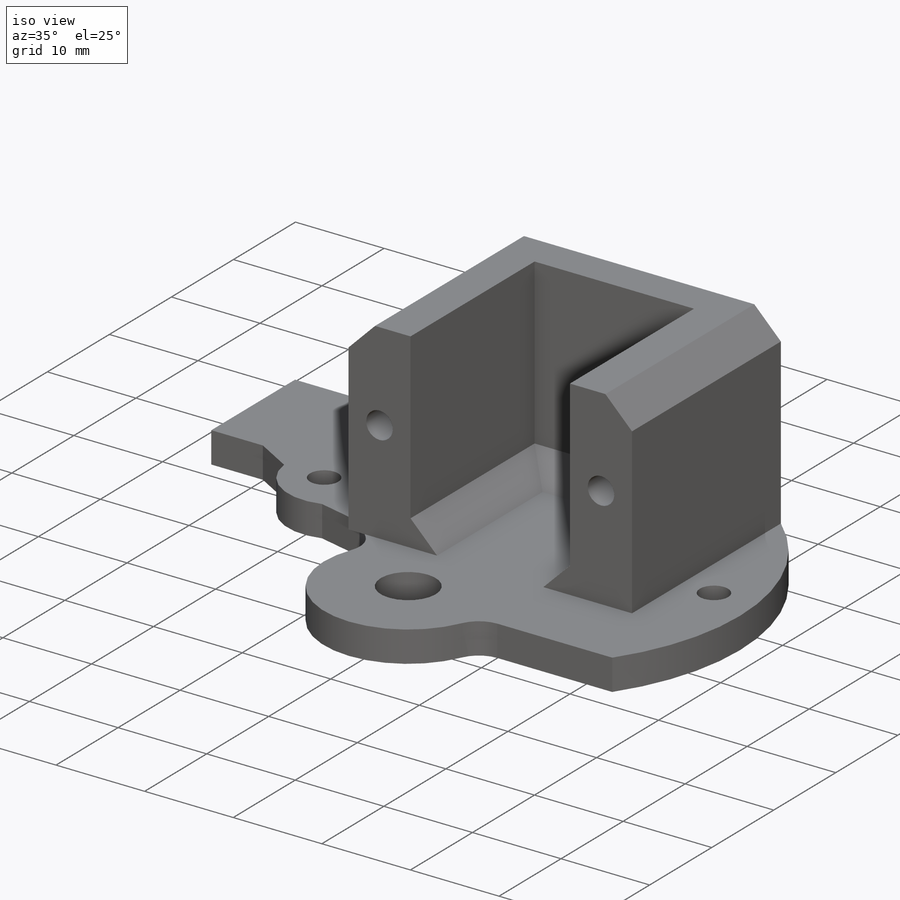
[diagram: iso view]
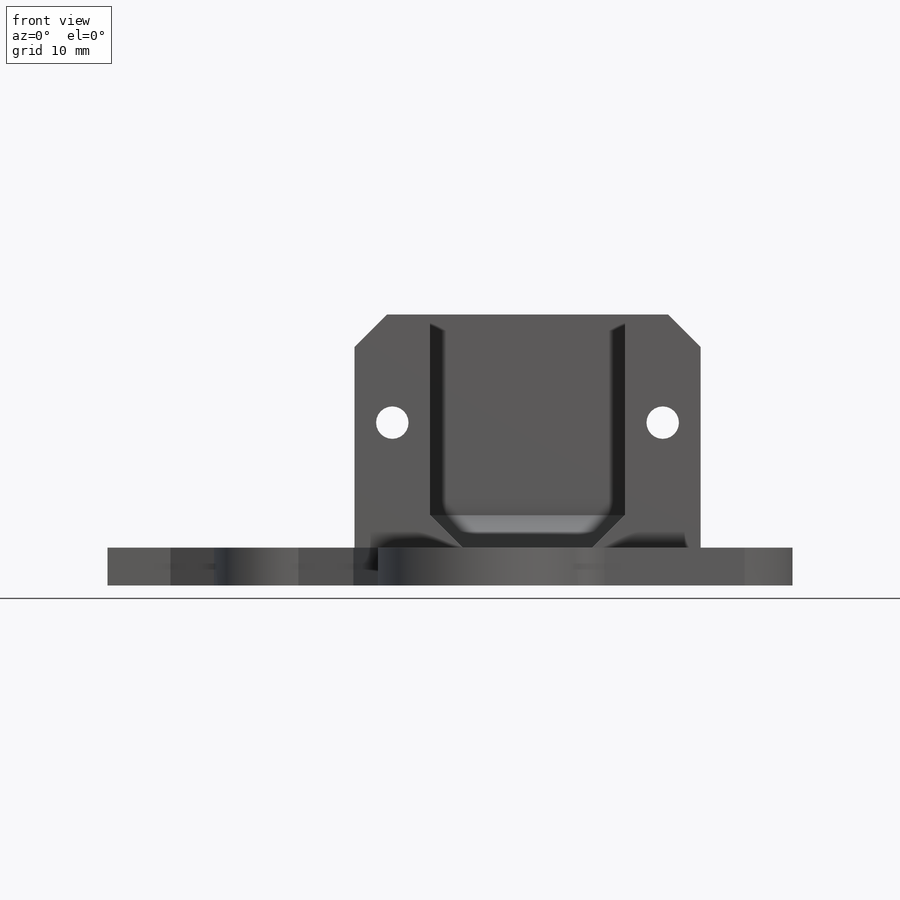
[diagram: front view]
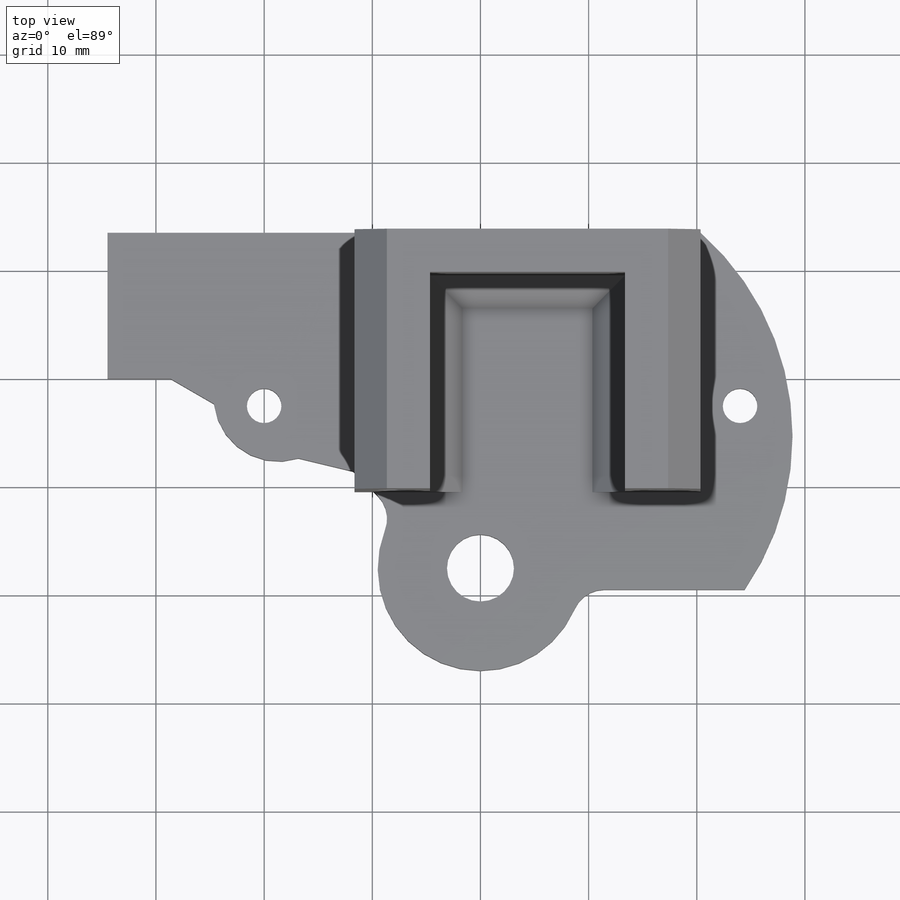
[diagram: top view]
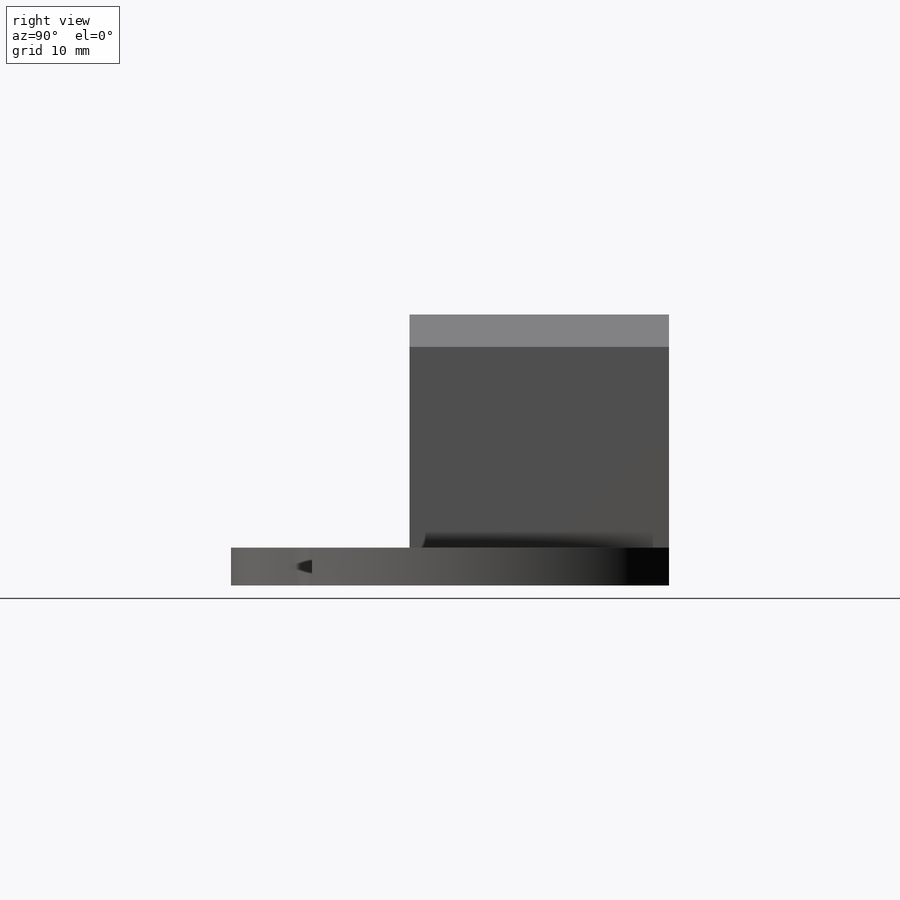
[diagram: right view]
SOLIDWORKS PART (.sldprt)
format: sldprt  version: not decoded by parser v0  size: 936,960 bytes
history: native  units: mm
features: sketch x15, cut_extrude x9, extrude x6, plane x3, delete_body x3, material x1, fillet x1, chamfer x1, move_body x1 (+10 scaffold rows collapsed; 1 parser-record rows omitted)
feature tree (51):
  scaffold x10  (default folders/planes/origin — collapsed)
  material  "Material <sin especificar>"
  plane  "Alzado"
  plane  "Planta"
  plane  "Vista lateral"
  sketch  "Croquis1"  dims[D1=70.0mm D2=65.0mm]
  extrude  "Extruir1"  Depth=3.5mm
  sketch  "Croquis2"  dims[D1=6.2mm D2=15.0mm]
  cut_extrude  "Extruir2"  Depth=5mm
  sketch  "Croquis3"  dims[c1.D3=42.0mm c1.D8=15.0mm c1.D9=46.0mm c1.D14=~10.529574mm c1.D2=2.0132mm c1.D6=~16.396404mm c2.D6=90.0deg c2.D7=21.0mm c3.D7=45.0deg c3.D14=0.5mm c3.D1=32.9868mm c3.D2=51.8364mm c3.D4=1.5mm c3.D5=9.5mm c3.D9=1.5mm c3.D10=1.5mm c3.D11=1.5mm c4.D10=2.0mm c4.D11=0.5mm c4.D12=0.5mm c4.D13=0.5mm c4.D15=1.5mm]
  extrude  "Extruir3"  Depth=10mm
  sketch  "Croquis4"
  cut_extrude  "Extruir4"  Depth=10mm
  fillet  "Redondeo1"  Radius=3mm
  sketch  "Croquis5"  dims[D1=12.0mm D2=25.0mm]
  extrude  "Extruir5"  [1 undecoded]
  chamfer  "Chaflán1"  Distance=5mm Angle=45deg
  sketch  "Croquis6"  dims[D1=0.0mm]
  extrude  "Extruir6"  Depth=3.5mm
  sketch  "Croquis7"  dims[c1.D1=3.2mm c1.D2=3.2mm c1.D3=3.2mm c1.D4=3.2mm c2.D2=16.0mm c2.D3=20.0mm c2.D4=24.0mm]
  cut_extrude  "Extruir7"  [1 undecoded]
  sketch  "Croquis8"
  cut_extrude  "Extruir8"  Depth=5mm
  sketch  "Croquis9"  dims[D1=0.7mm]
  cut_extrude  "Extruir9"  [1 undecoded]
  sketch  "Croquis10"  dims[c1.D1=4.0mm c1.D2=4.2mm c2.D1=6.125mm c2.D2=5.0mm c2.D3=3.0625mm]
  cut_extrude  "Extruir10"  Depth=10mm
  delete_body  "Sólido-Eliminar1"
  sketch  "Croquis11"  dims[D1=30.0mm D2=30.0mm]
  extrude  "Saliente-Extruir1"  Depth=4mm
  sketch  "Croquis13"  dims[D1=7.0mm D2=7.0mm D3=25.0mm]
  extrude  "Saliente-Extruir2"  Depth=20mm
  sketch  "Croquis14"  dims[D1=0.0mm]
  cut_extrude  "Cortar-Extruir1"  Depth=8.44mm
  sketch  "Croquis15"  dims[D1=0.0mm]
  cut_extrude  "Cortar-Extruir2"  Depth=8.44mm
  delete_body  "Chaflán2"
  sketch  "Croquis16"  dims[D1=3.0mm D2=10.0mm]
  cut_extrude  "Cortar-Extruir3"  [1 undecoded]
  delete_body  "Chaflán3"
  parser-record x1  (decoder bookkeeping rows leaked as tree rows — omitted from the tree; the rows remain in map.json)
  move_body  "Sólido-Mover/Copiar1"
decode coverage: 26 of 36 modeling features carry decoded parameters
note: ~ marks probable driven/reference dimensions
note: 4 parameter values undecoded
summary: no parameter record found for 4 features
note: suppression state not decoded; provenance and decode notes live in map.json
